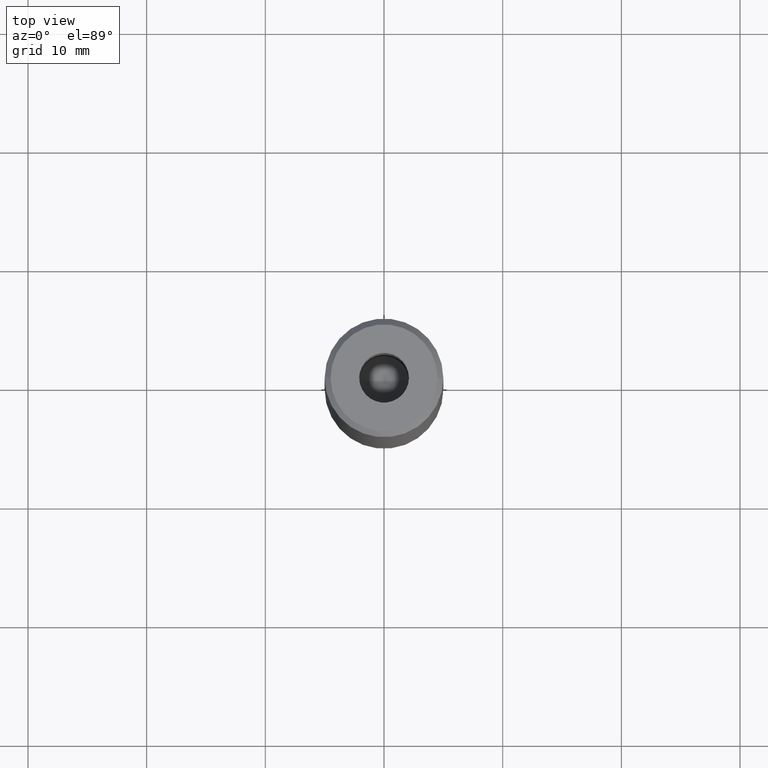
[diagram: clean part render]
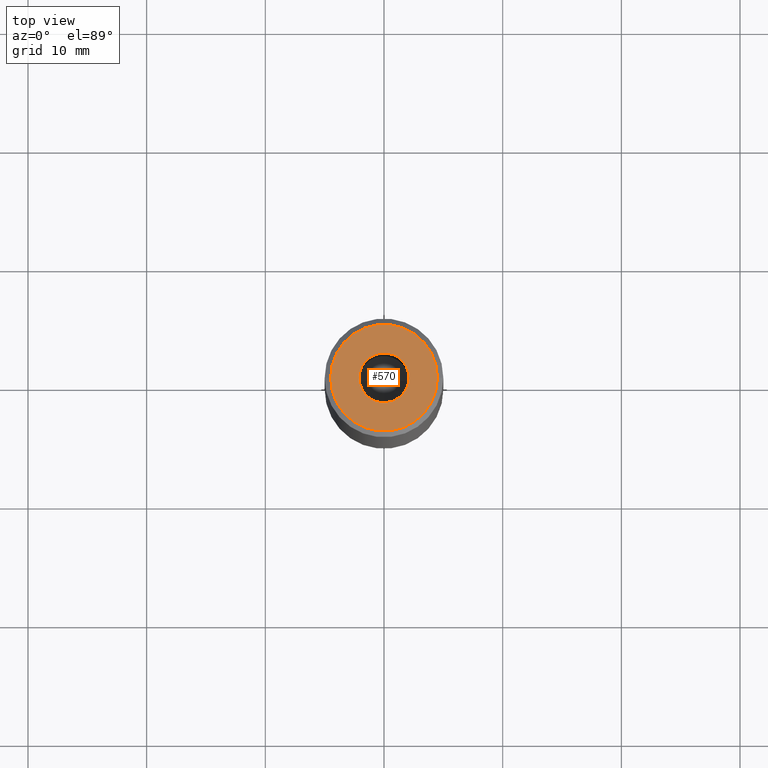
[diagram: same view with one face highlighted and labeled with its STEP entity id]
A machine part, top view. The second image highlights one B-rep face of the part: STEP entity #570.
In plain terms, the highlighted planar face has unit normal (0, -0, 1).
Its self-contained STEP definition (entity closure, byte-faithful):
#1 = CARTESIAN_POINT ( 'NONE',  ( 0.000000000000000000, 0.000000000000000000, 0.000000000000000000 ) ) ;
#29 = AXIS2_PLACEMENT_3D ( 'NONE', #1, #498, #38 ) ;
#38 = DIRECTION ( 'NONE',  ( 1.000000000000000000, 0.000000000000000000, 0.000000000000000000 ) ) ;
#41 = DIRECTION ( 'NONE',  ( -0.000000000000000000, -0.000000000000000000, 1.000000000000000000 ) ) ;
#50 = EDGE_CURVE ( 'NONE', #519, #537, #125, .T. ) ;
#77 = DIRECTION ( 'NONE',  ( 1.000000000000000000, 0.000000000000000000, 0.000000000000000000 ) ) ;
#87 = DIRECTION ( 'NONE',  ( -0.000000000000000000, -0.000000000000000000, 1.000000000000000000 ) ) ;
#92 = DIRECTION ( 'NONE',  ( 1.000000000000000000, 0.000000000000000000, 0.000000000000000000 ) ) ;
#97 = AXIS2_PLACEMENT_3D ( 'NONE', #236, #41, #226 ) ;
#104 = VERTEX_POINT ( 'NONE', #285 ) ;
#109 = ORIENTED_EDGE ( 'NONE', *, *, #268, .F. ) ;
#116 = ORIENTED_EDGE ( 'NONE', *, *, #291, .T. ) ;
#125 = CIRCLE ( 'NONE', #198, 4.499999999999990230 ) ;
#136 = VERTEX_POINT ( 'NONE', #169 ) ;
#169 = CARTESIAN_POINT ( 'NONE',  ( 2.099999999999998757, 0.000000000000000000, -1.990051048614449116E-16 ) ) ;
#171 = CIRCLE ( 'NONE', #97, 2.099999999999998757 ) ;
#198 = AXIS2_PLACEMENT_3D ( 'NONE', #323, #87, #267 ) ;
#202 = CARTESIAN_POINT ( 'NONE',  ( 4.499999999999990230, 5.817072295949921509E-16, 0.000000000000000000 ) ) ;
#208 = CARTESIAN_POINT ( 'NONE',  ( -4.499999999999990230, 0.000000000000000000, 0.000000000000000000 ) ) ;
#211 = CARTESIAN_POINT ( 'NONE',  ( 0.000000000000000000, 0.000000000000000000, 0.000000000000000000 ) ) ;
#226 = DIRECTION ( 'NONE',  ( 1.000000000000000000, 0.000000000000000000, 0.000000000000000000 ) ) ;
#236 = CARTESIAN_POINT ( 'NONE',  ( 0.000000000000000000, 0.000000000000000000, -1.990051048614449116E-16 ) ) ;
#252 = FACE_OUTER_BOUND ( 'NONE', #464, .T. ) ;
#254 = CIRCLE ( 'NONE', #29, 4.499999999999990230 ) ;
#267 = DIRECTION ( 'NONE',  ( 1.000000000000000000, 0.000000000000000000, 0.000000000000000000 ) ) ;
#268 = EDGE_CURVE ( 'NONE', #136, #104, #310, .T. ) ;
#274 = AXIS2_PLACEMENT_3D ( 'NONE', #435, #491, #77 ) ;
#285 = CARTESIAN_POINT ( 'NONE',  ( -2.099999999999998757, 2.571758278209439985E-16, -1.990051048614449116E-16 ) ) ;
#291 = EDGE_CURVE ( 'NONE', #537, #519, #254, .T. ) ;
#310 = CIRCLE ( 'NONE', #274, 2.099999999999998757 ) ;
#323 = CARTESIAN_POINT ( 'NONE',  ( 0.000000000000000000, 0.000000000000000000, 0.000000000000000000 ) ) ;
#343 = EDGE_CURVE ( 'NONE', #104, #136, #171, .T. ) ;
#391 = EDGE_LOOP ( 'NONE', ( #109, #542 ) ) ;
#406 = AXIS2_PLACEMENT_3D ( 'NONE', #211, #523, #92 ) ;
#426 = PLANE ( 'NONE',  #406 ) ;
#435 = CARTESIAN_POINT ( 'NONE',  ( 0.000000000000000000, 0.000000000000000000, -1.990051048614449116E-16 ) ) ;
#449 = ORIENTED_EDGE ( 'NONE', *, *, #50, .T. ) ;
#464 = EDGE_LOOP ( 'NONE', ( #116, #449 ) ) ;
#474 = FACE_BOUND ( 'NONE', #391, .T. ) ;
#491 = DIRECTION ( 'NONE',  ( -0.000000000000000000, -0.000000000000000000, 1.000000000000000000 ) ) ;
#498 = DIRECTION ( 'NONE',  ( -0.000000000000000000, -0.000000000000000000, 1.000000000000000000 ) ) ;
#519 = VERTEX_POINT ( 'NONE', #202 ) ;
#523 = DIRECTION ( 'NONE',  ( 0.000000000000000000, -0.000000000000000000, 1.000000000000000000 ) ) ;
#537 = VERTEX_POINT ( 'NONE', #208 ) ;
#542 = ORIENTED_EDGE ( 'NONE', *, *, #343, .F. ) ;
#570 = ADVANCED_FACE ( 'NONE', ( #474, #252 ), #426, .T. ) ;